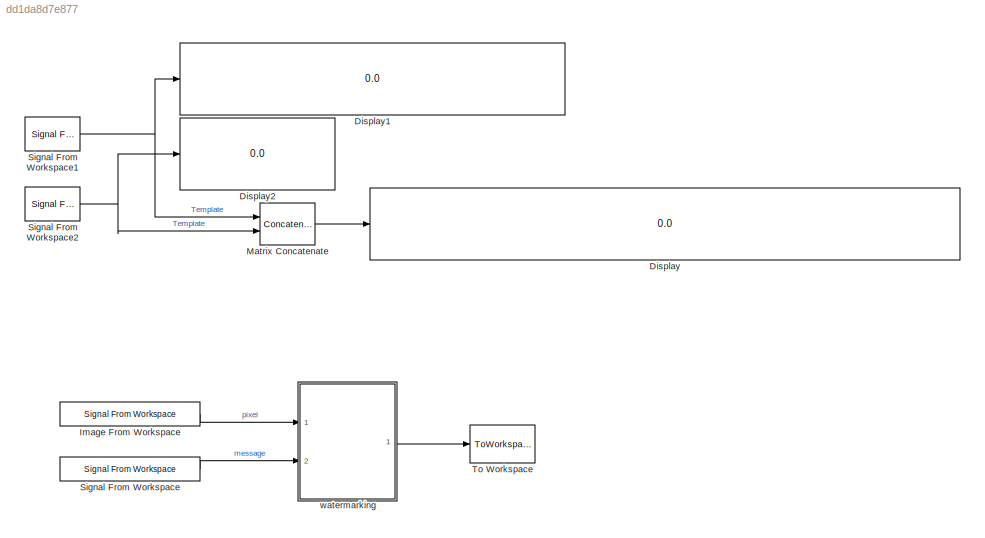
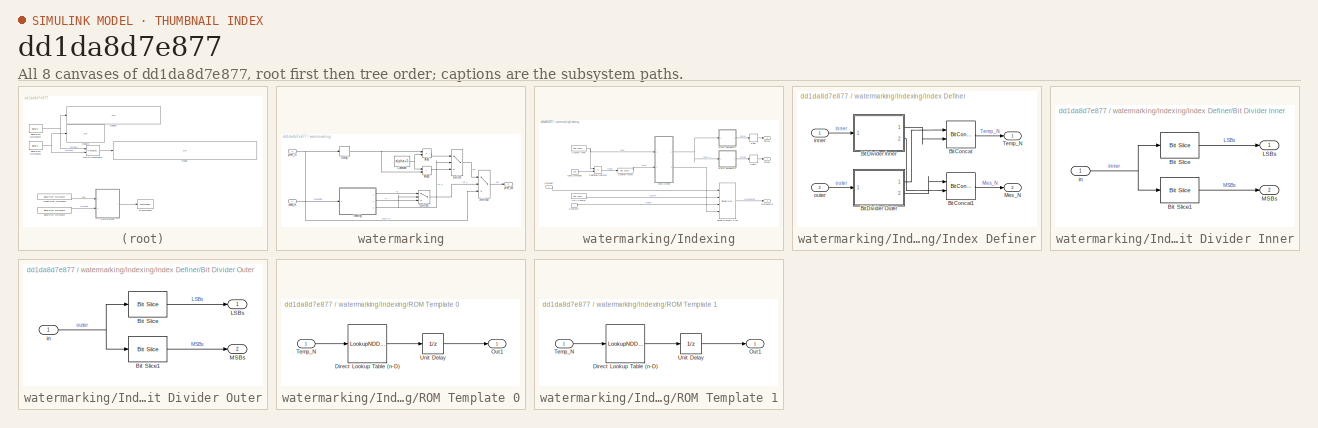
[diagram: thumbnail index - all 8 canvases of the model, root first then tree order]
MODEL slx_dd1da8d7e877
KIND model
CONFIG AbsTol = auto
CONFIG EnableMultiTasking = off
CONFIG FixedStep = auto
CONFIG MaxStep = auto
CONFIG MinStep = auto
CONFIG RelTol = 1e-3
CONFIG SampleTimeConstraint = Unconstrained
CONFIG SolverName = FixedStepDiscrete
CONFIG StartTime = 0.0
CONFIG StopTime = 256*256-1
BLOCK [Display] Display
  Commented = on
  Decimation = 2
  Format = binary (Stored Integer)
  Ports = [1]
BLOCK [Display] Display1
  Commented = on
  Decimation = 1
  Format = binary (Stored Integer)
  Ports = [1]
BLOCK [Display] Display2
  Commented = on
  Decimation = 1
  Format = binary (Stored Integer)
  Ports = [1]
BLOCK [Reference] Image From Workspace  REF=dspsrcs4/Signal From
Workspace
  Ports = [0, 1]
  SourceBlock = dspsrcs4/Signal From\nWorkspace
  SourceProductBaseCode = DS
  SourceType = Signal From Workspace
BLOCK [Concatenate] Matrix Concatenate
  Commented = on
  ConcatenateDimension = 2
  Mode = Multidimensional array
  Ports = [2, 1]
BLOCK [Reference] Signal From Workspace  REF=dspsrcs4/Signal From
Workspace
  Ports = [0, 1]
  SourceBlock = dspsrcs4/Signal From\nWorkspace
  SourceProductBaseCode = DS
  SourceType = Signal From Workspace
BLOCK [Reference] Signal From Workspace1  REF=dspsrcs4/Signal From
Workspace
  Commented = on
  Ports = [0, 1]
  SourceBlock = dspsrcs4/Signal From\nWorkspace
  SourceProductBaseCode = DS
  SourceType = Signal From Workspace
BLOCK [Reference] Signal From Workspace2  REF=dspsrcs4/Signal From
Workspace
  Commented = on
  Ports = [0, 1]
  SourceBlock = dspsrcs4/Signal From\nWorkspace
  SourceProductBaseCode = DS
  SourceType = Signal From Workspace
BLOCK [ToWorkspace] To Workspace
  MaxDataPoints = inf
  Ports = [1]
  SampleTime = -1
  Save2DSignal = 2-D array (concatenate along first dimension)
  VariableName = Watermarked
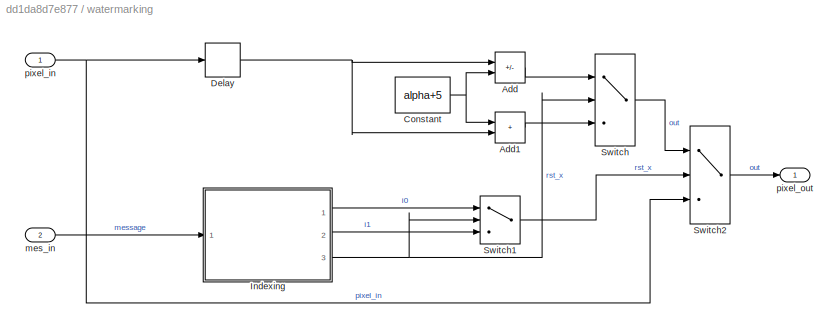
BLOCK [SubSystem] watermarking
  Ports = [2, 1]
  RequestExecContextInheritance = off
  TreatAsAtomicUnit = on
BLOCK [Sum] watermarking/Add
  IconShape = rectangular
  Inputs = +-
  OutDataTypeStr = uint8
  OutMax = [255]
  OutMin = [0]
  Ports = [2, 1]
BLOCK [Sum] watermarking/Add1
  IconShape = rectangular
  OutDataTypeStr = uint8
  OutMax = [255]
  OutMin = [0]
  Ports = [2, 1]
BLOCK [Constant] watermarking/Constant
  SampleTime = -1
  Value = alpha+5
BLOCK [Delay] watermarking/Delay
  InputPortMap = u0
  Ports = [1, 1]
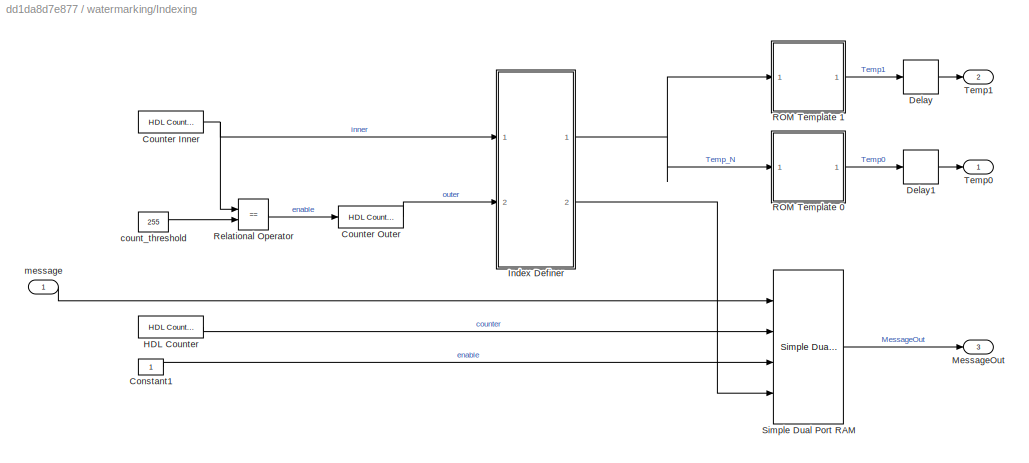
BLOCK [SubSystem] watermarking/Indexing
  Ports = [1, 3]
  RequestExecContextInheritance = off
BLOCK [Constant] watermarking/Indexing/Constant1
  OutDataTypeStr = boolean
  OutMax = [1]
  OutMin = [1]
  SampleTime = -1
BLOCK [Reference] watermarking/Indexing/Counter Inner  REF=hdlsllib/Sources/HDL Counter
  Ports = [0, 1]
  SourceBlock = hdlsllib/Sources/HDL Counter
  SourceProductBaseCode = SL
  SourceType = HDL Counter
BLOCK [Reference] watermarking/Indexing/Counter Outer  REF=hdlsllib/Sources/HDL Counter
  Ports = [1, 1]
  SourceBlock = hdlsllib/Sources/HDL Counter
  SourceProductBaseCode = SL
  SourceType = HDL Counter
BLOCK [Delay] watermarking/Indexing/Delay
  DelayLength = 1
  InitialCondition = 0
  InputPortMap = u0
  Ports = [1, 1]
BLOCK [Delay] watermarking/Indexing/Delay1
  DelayLength = 1
  InitialCondition = 0
  InputPortMap = u0
  Ports = [1, 1]
BLOCK [Reference] watermarking/Indexing/HDL Counter  REF=hdlsllib/Sources/HDL Counter
  Ports = [0, 1]
  SourceBlock = hdlsllib/Sources/HDL Counter
  SourceProductBaseCode = SL
  SourceType = HDL Counter
BLOCK [SubSystem] watermarking/Indexing/Index Definer
  Ports = [2, 2]
  RequestExecContextInheritance = off
BLOCK [Reference] watermarking/Indexing/Index Definer/Bit Concat  REF=hdlsllib/Logic and Bit
Operations/Bit Concat
  Ports = [2, 1]
  SourceBlock = hdlsllib/Logic and Bit\nOperations/Bit Concat
  SourceProductBaseCode = SL
  SourceType = Bit Concat
BLOCK [Reference] watermarking/Indexing/Index Definer/Bit Concat1  REF=hdlsllib/Logic and Bit
Operations/Bit Concat
  Ports = [2, 1]
  SourceBlock = hdlsllib/Logic and Bit\nOperations/Bit Concat
  SourceProductBaseCode = SL
  SourceType = Bit Concat
BLOCK [SubSystem] watermarking/Indexing/Index Definer/Bit Divider Inner
  Ports = [1, 2]
  RequestExecContextInheritance = off
BLOCK [Reference] watermarking/Indexing/Index Definer/Bit Divider Inner/Bit Slice  REF=hdlsllib/Logic and Bit
Operations/Bit Slice
  Ports = [1, 1]
  SourceBlock = hdlsllib/Logic and Bit\nOperations/Bit Slice
  SourceProductBaseCode = SL
  SourceType = Bit Slice
BLOCK [Reference] watermarking/Indexing/Index Definer/Bit Divider Inner/Bit Slice1  REF=hdlsllib/Logic and Bit
Operations/Bit Slice
  Ports = [1, 1]
  SourceBlock = hdlsllib/Logic and Bit\nOperations/Bit Slice
  SourceProductBaseCode = SL
  SourceType = Bit Slice
BLOCK [Outport] watermarking/Indexing/Index Definer/Bit Divider Inner/LSBs
BLOCK [Outport] watermarking/Indexing/Index Definer/Bit Divider Inner/MSBs
  Port = 2
BLOCK [Inport] watermarking/Indexing/Index Definer/Bit Divider Inner/in
BLOCK [SubSystem] watermarking/Indexing/Index Definer/Bit Divider Outer
  Ports = [1, 2]
  RequestExecContextInheritance = off
BLOCK [Reference] watermarking/Indexing/Index Definer/Bit Divider Outer/Bit Slice  REF=hdlsllib/Logic and Bit
Operations/Bit Slice
  Ports = [1, 1]
  SourceBlock = hdlsllib/Logic and Bit\nOperations/Bit Slice
  SourceProductBaseCode = SL
  SourceType = Bit Slice
BLOCK [Reference] watermarking/Indexing/Index Definer/Bit Divider Outer/Bit Slice1  REF=hdlsllib/Logic and Bit
Operations/Bit Slice
  Ports = [1, 1]
  SourceBlock = hdlsllib/Logic and Bit\nOperations/Bit Slice
  SourceProductBaseCode = SL
  SourceType = Bit Slice
BLOCK [Outport] watermarking/Indexing/Index Definer/Bit Divider Outer/LSBs
BLOCK [Outport] watermarking/Indexing/Index Definer/Bit Divider Outer/MSBs
  Port = 2
BLOCK [Inport] watermarking/Indexing/Index Definer/Bit Divider Outer/in
BLOCK [Outport] watermarking/Indexing/Index Definer/Mes_N
  Port = 2
BLOCK [Outport] watermarking/Indexing/Index Definer/Temp_N
BLOCK [Inport] watermarking/Indexing/Index Definer/inner
BLOCK [Inport] watermarking/Indexing/Index Definer/outer
  Port = 2
BLOCK [Outport] watermarking/Indexing/MessageOut
  Port = 3
BLOCK [SubSystem] watermarking/Indexing/ROM Template 0
  Ports = [1, 1]
  RequestExecContextInheritance = off
BLOCK [LookupNDDirect] watermarking/Indexing/ROM Template 0/Direct Lookup Table (n-D)
  DiagnosticForOutOfRangeInput = Error
  NumberOfTableDimensions = 1
  Ports = [1, 1]
  Table = T0
  TableMax = [1]
  TableMin = [0]
BLOCK [Outport] watermarking/Indexing/ROM Template 0/Out1
BLOCK [Inport] watermarking/Indexing/ROM Template 0/Temp_N
BLOCK [UnitDelay] watermarking/Indexing/ROM Template 0/Unit Delay
  HasFrameUpgradeWarning = on
  SampleTime = -1
BLOCK [SubSystem] watermarking/Indexing/ROM Template 1
  Ports = [1, 1]
  RequestExecContextInheritance = off
BLOCK [LookupNDDirect] watermarking/Indexing/ROM Template 1/Direct Lookup Table (n-D)
  DiagnosticForOutOfRangeInput = Error
  NumberOfTableDimensions = 1
  Ports = [1, 1]
  Table = T1
  TableMax = [1]
  TableMin = [0]
BLOCK [Outport] watermarking/Indexing/ROM Template 1/Out1
BLOCK [Inport] watermarking/Indexing/ROM Template 1/Temp_N
BLOCK [UnitDelay] watermarking/Indexing/ROM Template 1/Unit Delay
  HasFrameUpgradeWarning = on
  SampleTime = -1
BLOCK [RelationalOperator] watermarking/Indexing/Relational Operator
  InputSameDT = off
  Operator = ==
  OutDataTypeStr = boolean
  Ports = [2, 1]
BLOCK [Reference] watermarking/Indexing/Simple Dual Port RAM  REF=hdlsllib/HDL RAMs/Simple Dual Port RAM
  Ports = [4, 1]
  SourceBlock = hdlsllib/HDL RAMs/Simple Dual Port RAM
  SourceProductBaseCode = SL
  SourceType = Simple Dual-port RAM
BLOCK [Outport] watermarking/Indexing/Temp0
BLOCK [Outport] watermarking/Indexing/Temp1
  Port = 2
BLOCK [Constant] watermarking/Indexing/count_threshold
  OutDataTypeStr = uint8
  OutMax = [255]
  OutMin = [255]
  SampleTime = -1
  Value = 255
BLOCK [Inport] watermarking/Indexing/message
BLOCK [Switch] watermarking/Switch
  Criteria = u2 ~= 0
  InputSameDT = off
  SaturateOnIntegerOverflow = off
BLOCK [Switch] watermarking/Switch1
  Criteria = u2 ~= 0
  InputSameDT = off
  SaturateOnIntegerOverflow = off
BLOCK [Switch] watermarking/Switch2
  Criteria = u2 ~= 0
  InputSameDT = off
  SaturateOnIntegerOverflow = off
BLOCK [Inport] watermarking/mes_in
  Port = 2
BLOCK [Inport] watermarking/pixel_in
BLOCK [Outport] watermarking/pixel_out
  VectorParamsAs1DForOutWhenUnconnected = off
LINE Image From Workspace:1 -> watermarking:1
LINE Matrix Concatenate:1 -> Display:1
NET Signal From Workspace1:1 -> Display1:1, Matrix Concatenate:1
NET Signal From Workspace2:1 -> Display2:1, Matrix Concatenate:2
LINE Signal From Workspace:1 -> watermarking:2
LINE watermarking/Add1:1 -> watermarking/Switch:3
LINE watermarking/Add:1 -> watermarking/Switch:1
NET watermarking/Constant:1 -> watermarking/Add1:1, watermarking/Add:2
NET watermarking/Delay:1 -> watermarking/Add1:2, watermarking/Add:1
LINE watermarking/Indexing/Constant1:1 -> watermarking/Indexing/Simple Dual Port RAM:3
NET watermarking/Indexing/Counter Inner:1 -> watermarking/Indexing/Index Definer:1, watermarking/Indexing/Relational Operator:1
LINE watermarking/Indexing/Counter Outer:1 -> watermarking/Indexing/Index Definer:2
LINE watermarking/Indexing/Delay1:1 -> watermarking/Indexing/Temp0:1
LINE watermarking/Indexing/Delay:1 -> watermarking/Indexing/Temp1:1
LINE watermarking/Indexing/HDL Counter:1 -> watermarking/Indexing/Simple Dual Port RAM:2
LINE watermarking/Indexing/Index Definer/Bit Concat1:1 -> watermarking/Indexing/Index Definer/Mes_N:1
LINE watermarking/Indexing/Index Definer/Bit Concat:1 -> watermarking/Indexing/Index Definer/Temp_N:1
LINE watermarking/Indexing/Index Definer/Bit Divider Inner/Bit Slice1:1 -> watermarking/Indexing/Index Definer/Bit Divider Inner/MSBs:1
LINE watermarking/Indexing/Index Definer/Bit Divider Inner/Bit Slice:1 -> watermarking/Indexing/Index Definer/Bit Divider Inner/LSBs:1
NET watermarking/Indexing/Index Definer/Bit Divider Inner/in:1 -> watermarking/Indexing/Index Definer/Bit Divider Inner/Bit Slice1:1, watermarking/Indexing/Index Definer/Bit Divider Inner/Bit Slice:1
LINE watermarking/Indexing/Index Definer/Bit Divider Inner:1 -> watermarking/Indexing/Index Definer/Bit Concat:2
LINE watermarking/Indexing/Index Definer/Bit Divider Inner:2 -> watermarking/Indexing/Index Definer/Bit Concat1:2
LINE watermarking/Indexing/Index Definer/Bit Divider Outer/Bit Slice1:1 -> watermarking/Indexing/Index Definer/Bit Divider Outer/MSBs:1
LINE watermarking/Indexing/Index Definer/Bit Divider Outer/Bit Slice:1 -> watermarking/Indexing/Index Definer/Bit Divider Outer/LSBs:1
NET watermarking/Indexing/Index Definer/Bit Divider Outer/in:1 -> watermarking/Indexing/Index Definer/Bit Divider Outer/Bit Slice1:1, watermarking/Indexing/Index Definer/Bit Divider Outer/Bit Slice:1
LINE watermarking/Indexing/Index Definer/Bit Divider Outer:1 -> watermarking/Indexing/Index Definer/Bit Concat:1
LINE watermarking/Indexing/Index Definer/Bit Divider Outer:2 -> watermarking/Indexing/Index Definer/Bit Concat1:1
LINE watermarking/Indexing/Index Definer/inner:1 -> watermarking/Indexing/Index Definer/Bit Divider Inner:1
LINE watermarking/Indexing/Index Definer/outer:1 -> watermarking/Indexing/Index Definer/Bit Divider Outer:1
NET watermarking/Indexing/Index Definer:1 -> watermarking/Indexing/ROM Template 0:1, watermarking/Indexing/ROM Template 1:1
LINE watermarking/Indexing/Index Definer:2 -> watermarking/Indexing/Simple Dual Port RAM:4
LINE watermarking/Indexing/ROM Template 0/Direct Lookup Table (n-D):1 -> watermarking/Indexing/ROM Template 0/Unit Delay:1
LINE watermarking/Indexing/ROM Template 0/Temp_N:1 -> watermarking/Indexing/ROM Template 0/Direct Lookup Table (n-D):1
LINE watermarking/Indexing/ROM Template 0/Unit Delay:1 -> watermarking/Indexing/ROM Template 0/Out1:1
LINE watermarking/Indexing/ROM Template 0:1 -> watermarking/Indexing/Delay1:1
LINE watermarking/Indexing/ROM Template 1/Direct Lookup Table (n-D):1 -> watermarking/Indexing/ROM Template 1/Unit Delay:1
LINE watermarking/Indexing/ROM Template 1/Temp_N:1 -> watermarking/Indexing/ROM Template 1/Direct Lookup Table (n-D):1
LINE watermarking/Indexing/ROM Template 1/Unit Delay:1 -> watermarking/Indexing/ROM Template 1/Out1:1
LINE watermarking/Indexing/ROM Template 1:1 -> watermarking/Indexing/Delay:1
LINE watermarking/Indexing/Relational Operator:1 -> watermarking/Indexing/Counter Outer:1
LINE watermarking/Indexing/Simple Dual Port RAM:1 -> watermarking/Indexing/MessageOut:1
LINE watermarking/Indexing/count_threshold:1 -> watermarking/Indexing/Relational Operator:2
LINE watermarking/Indexing/message:1 -> watermarking/Indexing/Simple Dual Port RAM:1
LINE watermarking/Indexing:1 -> watermarking/Switch1:1
LINE watermarking/Indexing:2 -> watermarking/Switch1:3
NET watermarking/Indexing:3 -> watermarking/Switch1:2, watermarking/Switch:2
LINE watermarking/Switch1:1 -> watermarking/Switch2:2
LINE watermarking/Switch2:1 -> watermarking/pixel_out:1
LINE watermarking/Switch:1 -> watermarking/Switch2:1
LINE watermarking/mes_in:1 -> watermarking/Indexing:1
NET watermarking/pixel_in:1 -> watermarking/Delay:1, watermarking/Switch2:3
LINE watermarking:1 -> To Workspace:1
note: NET lines group one-source signal fan-out (src -> all destinations, sorted); 1:1 wires keep LINE
